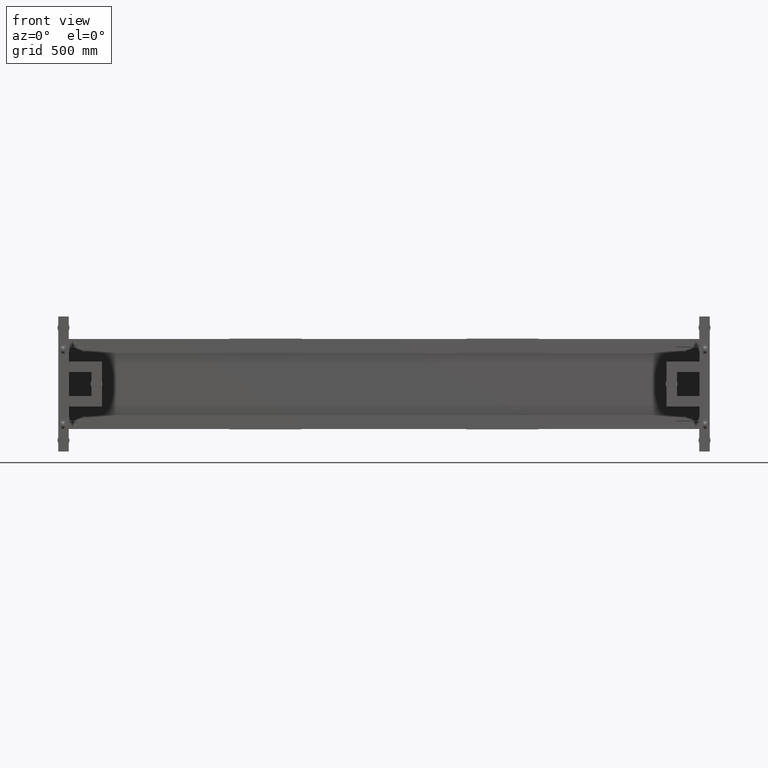
[diagram: clean part render]
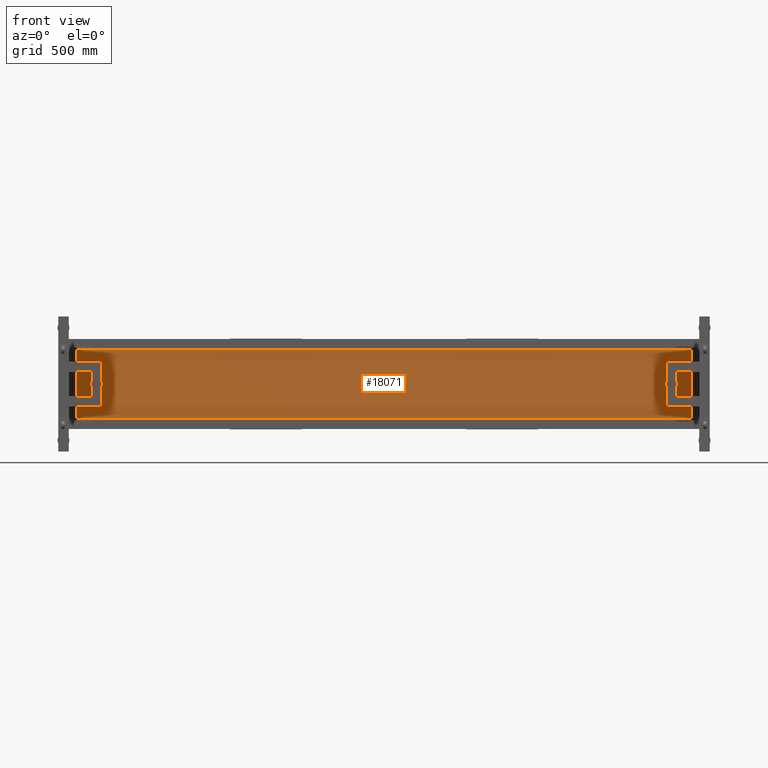
[diagram: same view with one face highlighted and labeled with its STEP entity id]
A machine part, front view. The second image highlights one B-rep face of the part: STEP entity #18071.
In plain terms, the highlighted planar face has unit normal (0, 1, -0).
Its self-contained STEP definition (entity closure, byte-faithful):
#8668 = EDGE_CURVE ( 'NONE', #70425, #61725, #21205, .T. ) ;
#14499 = EDGE_LOOP ( 'NONE', ( #68740, #74826, #27670, #69407 ) ) ;
#14702 = VECTOR ( 'NONE', #50990, 1000.000000000000000 ) ;
#14878 = CARTESIAN_POINT ( 'NONE',  ( 981.8275125628157411, 555.4410804020133128, 1.110223024625156540E-13 ) ) ;
#18071 = ADVANCED_FACE ( 'NONE', ( #20633 ), #38626, .F. ) ;
#20284 = VECTOR ( 'NONE', #27748, 1000.000000000000000 ) ;
#20633 = FACE_OUTER_BOUND ( 'NONE', #14499, .T. ) ;
#21205 = LINE ( 'NONE', #46180, #20284 ) ;
#24148 = CARTESIAN_POINT ( 'NONE',  ( 2180.317512562815409, 555.4410804020129717, -228.4899999999998954 ) ) ;
#26027 = CARTESIAN_POINT ( 'NONE',  ( 2880.317512562815864, 555.4410804020131991, -228.4899999999998954 ) ) ;
#26697 = CARTESIAN_POINT ( 'NONE',  ( -1216.662487437185973, 555.4410804020124033, -228.4899999999998954 ) ) ;
#27670 = ORIENTED_EDGE ( 'NONE', *, *, #63040, .F. ) ;
#27748 = DIRECTION ( 'NONE',  ( 1.000000000000000000, -1.092267369640097868E-16, 0.000000000000000000 ) ) ;
#28413 = VECTOR ( 'NONE', #40583, 1000.000000000000000 ) ;
#34467 = AXIS2_PLACEMENT_3D ( 'NONE', #14878, #46403, #39835 ) ;
#34706 = CARTESIAN_POINT ( 'NONE',  ( 2880.317512562815864, 555.4410804020136538, 228.4900000000081093 ) ) ;
#38626 = PLANE ( 'NONE',  #34467 ) ;
#39835 = DIRECTION ( 'NONE',  ( 1.092267369640097871E-31, 1.000000000000000472E-15, 1.000000000000000000 ) ) ;
#40583 = DIRECTION ( 'NONE',  ( 0.000000000000000000, 1.000000000000000472E-15, 1.000000000000000000 ) ) ;
#44731 = CARTESIAN_POINT ( 'NONE',  ( -1216.662487437185973, 555.4410804020128580, 228.4900000000081093 ) ) ;
#44851 = VERTEX_POINT ( 'NONE', #52166 ) ;
#46180 = CARTESIAN_POINT ( 'NONE',  ( -216.6624874371843532, 555.4410804020136538, 228.4900000000001228 ) ) ;
#46403 = DIRECTION ( 'NONE',  ( 1.092267369640097868E-16, 1.000000000000000000, -1.000000000000000472E-15 ) ) ;
#46949 = VERTEX_POINT ( 'NONE', #73452 ) ;
#47142 = LINE ( 'NONE', #26697, #28413 ) ;
#49717 = EDGE_CURVE ( 'NONE', #44851, #70425, #47142, .T. ) ;
#50990 = DIRECTION ( 'NONE',  ( -3.450989802914127535E-31, 1.000000000000000472E-15, 1.000000000000000000 ) ) ;
#52166 = CARTESIAN_POINT ( 'NONE',  ( -1216.662487437185973, 555.4410804020124033, -228.4899999999998954 ) ) ;
#56034 = EDGE_CURVE ( 'NONE', #46949, #61725, #69794, .T. ) ;
#56042 = DIRECTION ( 'NONE',  ( -1.000000000000000000, 1.092267369640097868E-16, 0.000000000000000000 ) ) ;
#58952 = LINE ( 'NONE', #24148, #72263 ) ;
#61725 = VERTEX_POINT ( 'NONE', #34706 ) ;
#63040 = EDGE_CURVE ( 'NONE', #46949, #44851, #58952, .T. ) ;
#68740 = ORIENTED_EDGE ( 'NONE', *, *, #8668, .F. ) ;
#69407 = ORIENTED_EDGE ( 'NONE', *, *, #56034, .T. ) ;
#69794 = LINE ( 'NONE', #26027, #14702 ) ;
#70425 = VERTEX_POINT ( 'NONE', #44731 ) ;
#72263 = VECTOR ( 'NONE', #56042, 1000.000000000000000 ) ;
#73452 = CARTESIAN_POINT ( 'NONE',  ( 2880.317512562815864, 555.4410804020131991, -228.4899999999998954 ) ) ;
#74826 = ORIENTED_EDGE ( 'NONE', *, *, #49717, .F. ) ;